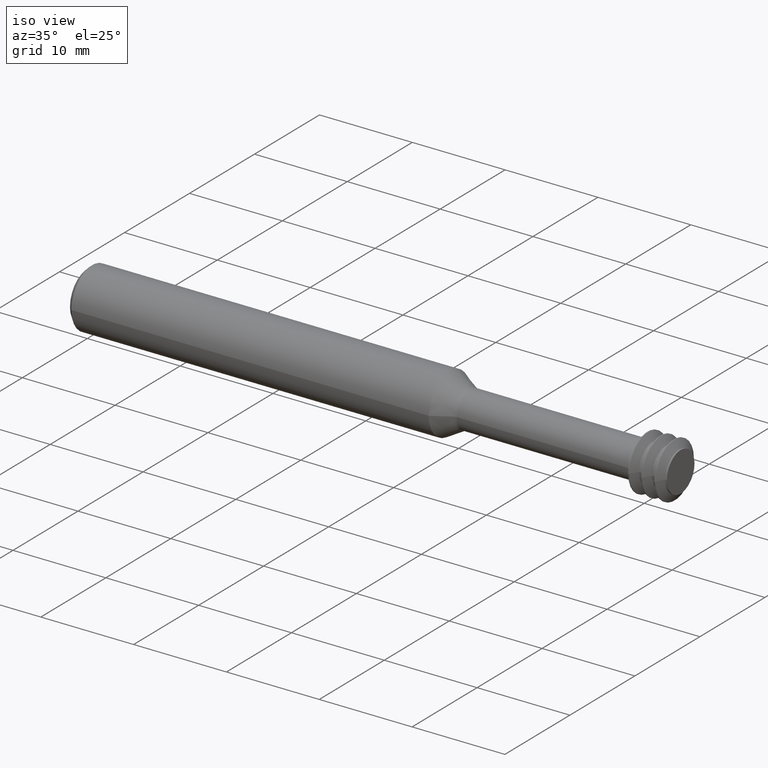
[diagram: clean part render]
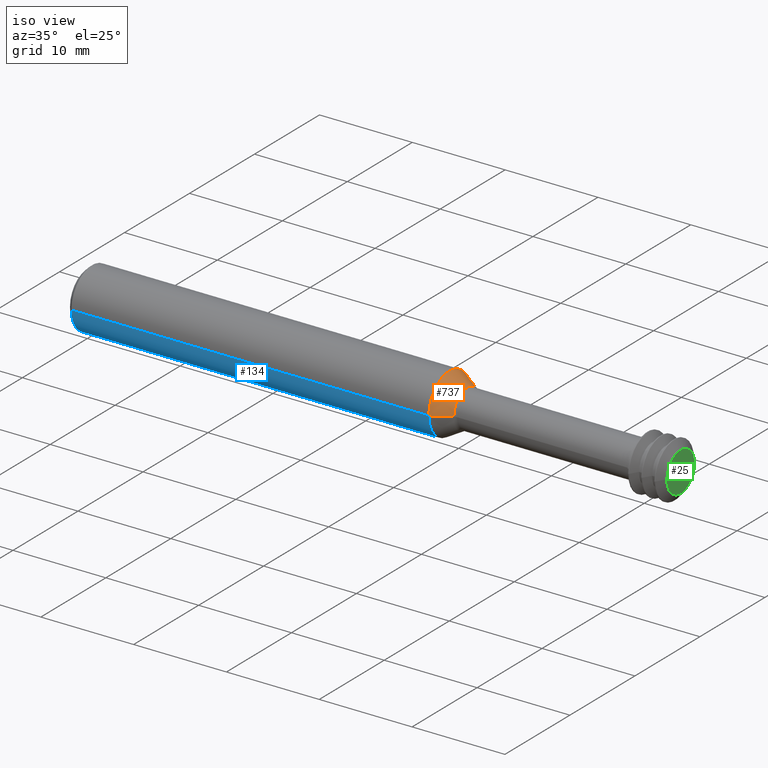
[diagram: same view with three faces highlighted in distinct colors, each labeled with its STEP entity id]
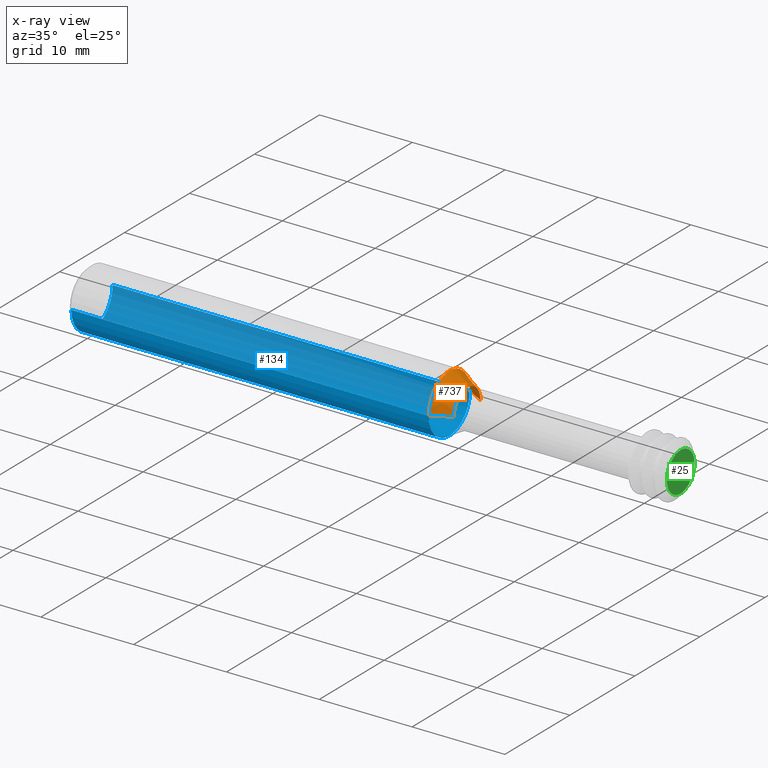
[diagram: x-ray of the same camera — body ghosted, the three highlighted faces saturated]
A machine part, iso view with three faces highlighted in distinct colors.
The next image is the same camera in x-ray (body ghosted, the three faces saturated) — at least one of them is partly hidden behind the body in this view.
Their STEP definitions:

[orange] entity #737 — the highlighted conical surface has half-angle 30 deg.
#14 = VERTEX_POINT ( 'NONE', #876 ) ;
#102 = CARTESIAN_POINT ( 'NONE',  ( 1.535853419665399011, 0.1248500000000000026, 1.528971528735470422E-17 ) ) ;
#117 = CARTESIAN_POINT ( 'NONE',  ( 1.611198729810778385, -5.603939695627942701E-19, 0.000000000000000000 ) ) ;
#161 = DIRECTION ( 'NONE',  ( -0.8660254037844373753, -0.5000000000000022204, 0.000000000000000000 ) ) ;
#174 = CARTESIAN_POINT ( 'NONE',  ( 1.611198729810778385, -0.08134936490538911824, 0.000000000000000000 ) ) ;
#178 = EDGE_CURVE ( 'NONE', #225, #14, #384, .T. ) ;
#190 = DIRECTION ( 'NONE',  ( -0.8660254037844373753, 0.5000000000000022204, 6.123233995736793153E-17 ) ) ;
#225 = VERTEX_POINT ( 'NONE', #174 ) ;
#230 = AXIS2_PLACEMENT_3D ( 'NONE', #241, #489, #404 ) ;
#241 = CARTESIAN_POINT ( 'NONE',  ( 1.611198729810778385, -5.603939695627942701E-19, 0.000000000000000000 ) ) ;
#252 = AXIS2_PLACEMENT_3D ( 'NONE', #117, #515, #687 ) ;
#336 = DIRECTION ( 'NONE',  ( -1.000000000000000000, 2.239313081137374464E-19, -0.000000000000000000 ) ) ;
#345 = CONICAL_SURFACE ( 'NONE', #252, 0.08134936490538911824, 0.5235987755983014802 ) ;
#384 = CIRCLE ( 'NONE', #230, 0.08134936490538911824 ) ;
#404 = DIRECTION ( 'NONE',  ( 0.000000000000000000, -1.000000000000000000, 0.000000000000000000 ) ) ;
#426 = ORIENTED_EDGE ( 'NONE', *, *, #178, .T. ) ;
#452 = AXIS2_PLACEMENT_3D ( 'NONE', #753, #336, #993 ) ;
#489 = DIRECTION ( 'NONE',  ( -1.000000000000000000, 2.239313081137374464E-19, -0.000000000000000000 ) ) ;
#505 = VERTEX_POINT ( 'NONE', #624 ) ;
#515 = DIRECTION ( 'NONE',  ( -1.000000000000000000, 2.239313081137374464E-19, -0.000000000000000000 ) ) ;
#523 = VECTOR ( 'NONE', #190, 39.37007874015748143 ) ;
#581 = CARTESIAN_POINT ( 'NONE',  ( 1.611198729810778385, -0.08134936490538911824, 0.000000000000000000 ) ) ;
#624 = CARTESIAN_POINT ( 'NONE',  ( 1.535853419665399011, -0.1248500000000000026, 0.000000000000000000 ) ) ;
#648 = EDGE_CURVE ( 'NONE', #505, #654, #906, .T. ) ;
#654 = VERTEX_POINT ( 'NONE', #102 ) ;
#666 = EDGE_CURVE ( 'NONE', #225, #505, #900, .T. ) ;
#687 = DIRECTION ( 'NONE',  ( 0.000000000000000000, -1.000000000000000000, 0.000000000000000000 ) ) ;
#702 = EDGE_CURVE ( 'NONE', #14, #654, #928, .T. ) ;
#737 = ADVANCED_FACE ( 'NONE', ( #862 ), #345, .T. ) ;
#753 = CARTESIAN_POINT ( 'NONE',  ( 1.535853419665399011, -5.435217957017042778E-19, 0.000000000000000000 ) ) ;
#758 = EDGE_LOOP ( 'NONE', ( #426, #789, #922, #828 ) ) ;
#789 = ORIENTED_EDGE ( 'NONE', *, *, #702, .T. ) ;
#828 = ORIENTED_EDGE ( 'NONE', *, *, #666, .F. ) ;
#862 = FACE_OUTER_BOUND ( 'NONE', #758, .T. ) ;
#876 = CARTESIAN_POINT ( 'NONE',  ( 1.611198729810778385, 0.08134936490538911824, 1.262606961088009447E-17 ) ) ;
#900 = LINE ( 'NONE', #581, #972 ) ;
#906 = CIRCLE ( 'NONE', #452, 0.1248500000000000026 ) ;
#922 = ORIENTED_EDGE ( 'NONE', *, *, #648, .F. ) ;
#928 = LINE ( 'NONE', #931, #523 ) ;
#931 = CARTESIAN_POINT ( 'NONE',  ( 1.611198729810778385, 0.08134936490538911824, 9.962423934405481643E-18 ) ) ;
#972 = VECTOR ( 'NONE', #161, 39.37007874015748143 ) ;
#993 = DIRECTION ( 'NONE',  ( 0.000000000000000000, -1.000000000000000000, 0.000000000000000000 ) ) ;

[blue] entity #134 — the highlighted cylindrical surface (edge-blend (fillet) strip) has radius 3.1712 mm, axis along (-1, 0, -0).
#30 = DIRECTION ( 'NONE',  ( -1.000000000000000000, 2.239313081137374464E-19, -0.000000000000000000 ) ) ;
#50 = ORIENTED_EDGE ( 'NONE', *, *, #122, .T. ) ;
#54 = EDGE_CURVE ( 'NONE', #551, #201, #857, .T. ) ;
#60 = CARTESIAN_POINT ( 'NONE',  ( 0.02000000000000005940, -2.040747565273492847E-19, 0.000000000000000000 ) ) ;
#70 = DIRECTION ( 'NONE',  ( -1.000000000000000000, 2.239313081137374464E-19, -0.000000000000000000 ) ) ;
#76 = DIRECTION ( 'NONE',  ( 0.000000000000000000, -1.000000000000000000, 0.000000000000000000 ) ) ;
#102 = CARTESIAN_POINT ( 'NONE',  ( 1.535853419665399011, 0.1248500000000000026, 1.528971528735470422E-17 ) ) ;
#122 = EDGE_CURVE ( 'NONE', #505, #201, #393, .T. ) ;
#134 = ADVANCED_FACE ( 'NONE', ( #901 ), #483, .T. ) ;
#201 = VERTEX_POINT ( 'NONE', #246 ) ;
#211 = ORIENTED_EDGE ( 'NONE', *, *, #54, .F. ) ;
#246 = CARTESIAN_POINT ( 'NONE',  ( 0.02000000000000005940, -0.1248500000000000026, 1.528971528735470422E-17 ) ) ;
#279 = VECTOR ( 'NONE', #70, 39.37007874015748143 ) ;
#332 = VECTOR ( 'NONE', #816, 39.37007874015748143 ) ;
#334 = ORIENTED_EDGE ( 'NONE', *, *, #921, .F. ) ;
#356 = DIRECTION ( 'NONE',  ( 0.000000000000000000, -1.000000000000000000, 0.000000000000000000 ) ) ;
#371 = ORIENTED_EDGE ( 'NONE', *, *, #840, .T. ) ;
#375 = DIRECTION ( 'NONE',  ( 0.000000000000000000, -1.000000000000000000, 0.000000000000000000 ) ) ;
#381 = DIRECTION ( 'NONE',  ( -1.000000000000000000, 2.239313081137374464E-19, -0.000000000000000000 ) ) ;
#393 = LINE ( 'NONE', #561, #332 ) ;
#397 = CARTESIAN_POINT ( 'NONE',  ( 2.350000000000000089, -7.258347044323575049E-19, 0.000000000000000000 ) ) ;
#467 = CARTESIAN_POINT ( 'NONE',  ( 0.02000000000000005940, 0.1248500000000000026, 0.000000000000000000 ) ) ;
#483 = CYLINDRICAL_SURFACE ( 'NONE', #658, 0.1248500000000000026 ) ;
#505 = VERTEX_POINT ( 'NONE', #624 ) ;
#520 = CARTESIAN_POINT ( 'NONE',  ( 1.535853419665399011, -5.435217957017042778E-19, 0.000000000000000000 ) ) ;
#551 = VERTEX_POINT ( 'NONE', #467 ) ;
#557 = CIRCLE ( 'NONE', #874, 0.1248500000000000026 ) ;
#561 = CARTESIAN_POINT ( 'NONE',  ( 2.350000000000000089, -0.1248500000000000026, 0.000000000000000000 ) ) ;
#624 = CARTESIAN_POINT ( 'NONE',  ( 1.535853419665399011, -0.1248500000000000026, 0.000000000000000000 ) ) ;
#639 = LINE ( 'NONE', #718, #279 ) ;
#654 = VERTEX_POINT ( 'NONE', #102 ) ;
#658 = AXIS2_PLACEMENT_3D ( 'NONE', #397, #974, #76 ) ;
#718 = CARTESIAN_POINT ( 'NONE',  ( 2.350000000000000089, 0.1248500000000000026, 1.528971528735470422E-17 ) ) ;
#812 = EDGE_LOOP ( 'NONE', ( #334, #371, #50, #211 ) ) ;
#816 = DIRECTION ( 'NONE',  ( -1.000000000000000000, 2.239313081137374464E-19, -0.000000000000000000 ) ) ;
#840 = EDGE_CURVE ( 'NONE', #654, #505, #557, .T. ) ;
#857 = CIRCLE ( 'NONE', #1036, 0.1248500000000000026 ) ;
#874 = AXIS2_PLACEMENT_3D ( 'NONE', #520, #30, #356 ) ;
#901 = FACE_OUTER_BOUND ( 'NONE', #812, .T. ) ;
#921 = EDGE_CURVE ( 'NONE', #654, #551, #639, .T. ) ;
#974 = DIRECTION ( 'NONE',  ( -1.000000000000000000, 2.239313081137374464E-19, -0.000000000000000000 ) ) ;
#1036 = AXIS2_PLACEMENT_3D ( 'NONE', #60, #381, #375 ) ;

[green] entity #25 — the highlighted planar face has unit normal (-1, 0, -0).
#25 = ADVANCED_FACE ( 'NONE', ( #224 ), #533, .F. ) ;
#36 = ORIENTED_EDGE ( 'NONE', *, *, #423, .T. ) ;
#197 = AXIS2_PLACEMENT_3D ( 'NONE', #235, #223, #1037 ) ;
#214 = EDGE_LOOP ( 'NONE', ( #930, #36 ) ) ;
#223 = DIRECTION ( 'NONE',  ( 1.000000000000000000, 0.000000000000000000, 0.000000000000000000 ) ) ;
#224 = FACE_OUTER_BOUND ( 'NONE', #214, .T. ) ;
#235 = CARTESIAN_POINT ( 'NONE',  ( 2.516989999999999839, -7.632289935742705271E-19, 0.000000000000000000 ) ) ;
#242 = VERTEX_POINT ( 'NONE', #306 ) ;
#306 = CARTESIAN_POINT ( 'NONE',  ( 2.516989999999999839, 0.08378605533475004530, 1.026083244788846534E-17 ) ) ;
#398 = CIRCLE ( 'NONE', #197, 0.08378605533475004530 ) ;
#423 = EDGE_CURVE ( 'NONE', #242, #1008, #398, .T. ) ;
#491 = AXIS2_PLACEMENT_3D ( 'NONE', #559, #700, #883 ) ;
#533 = PLANE ( 'NONE',  #990 ) ;
#559 = CARTESIAN_POINT ( 'NONE',  ( 2.516989999999999839, -7.632289935742705271E-19, 0.000000000000000000 ) ) ;
#700 = DIRECTION ( 'NONE',  ( 1.000000000000000000, 0.000000000000000000, 0.000000000000000000 ) ) ;
#780 = DIRECTION ( 'NONE',  ( -1.000000000000000000, 0.000000000000000000, -0.000000000000000000 ) ) ;
#821 = CIRCLE ( 'NONE', #491, 0.08378605533475004530 ) ;
#864 = CARTESIAN_POINT ( 'NONE',  ( 2.516989999999999839, 0.2500000000000000000, -0.2500000000000000000 ) ) ;
#883 = DIRECTION ( 'NONE',  ( 0.000000000000000000, 0.000000000000000000, 1.000000000000000000 ) ) ;
#930 = ORIENTED_EDGE ( 'NONE', *, *, #973, .T. ) ;
#949 = DIRECTION ( 'NONE',  ( -0.000000000000000000, 0.000000000000000000, 1.000000000000000000 ) ) ;
#958 = CARTESIAN_POINT ( 'NONE',  ( 2.516989999999999839, -0.08378605533475004530, 0.000000000000000000 ) ) ;
#973 = EDGE_CURVE ( 'NONE', #1008, #242, #821, .T. ) ;
#990 = AXIS2_PLACEMENT_3D ( 'NONE', #864, #780, #949 ) ;
#1008 = VERTEX_POINT ( 'NONE', #958 ) ;
#1037 = DIRECTION ( 'NONE',  ( 0.000000000000000000, 0.000000000000000000, 1.000000000000000000 ) ) ;